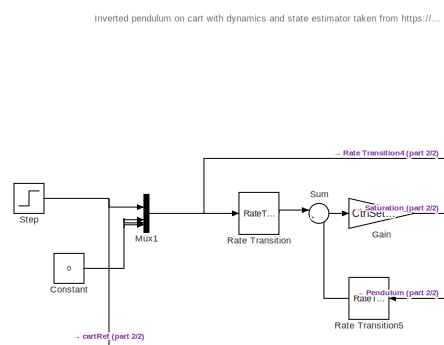
[diagram: root canvas - part 1/2, left side, full height]
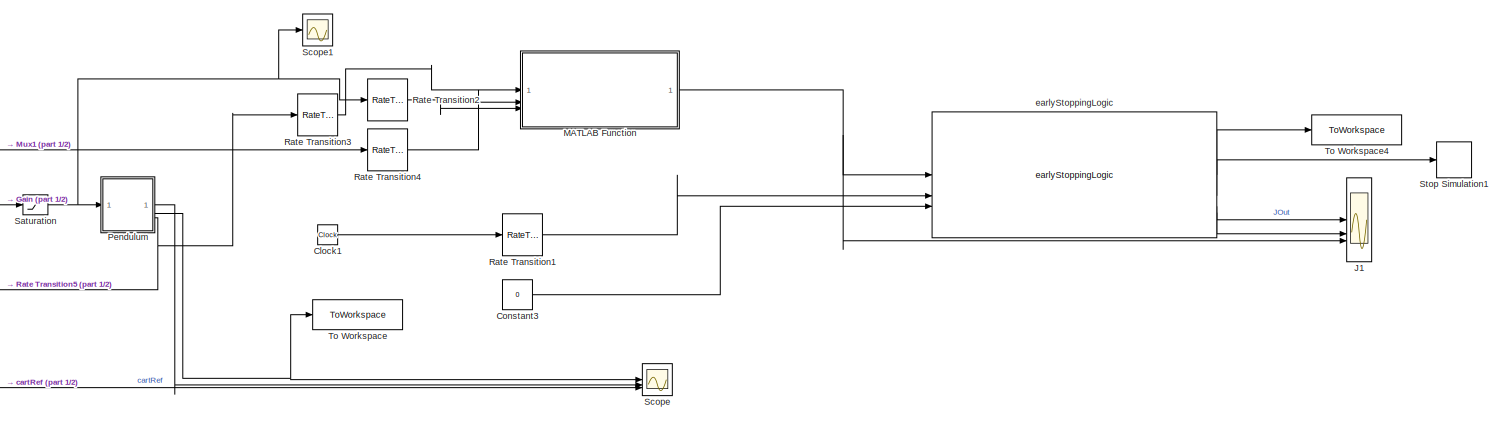
[diagram: root canvas - part 2/2, most of the canvas]
MODEL slx_97bd4b25ec9b
KIND model
CONFIG AbsTol = 1e-6
CONFIG EnableMultiTasking = off
CONFIG FixedStep = auto
CONFIG MaxStep = 0.02
CONFIG MinStep = auto
CONFIG RelTol = 1e-3
CONFIG SampleTimeConstraint = Unconstrained
CONFIG SolverName = ode45
CONFIG StartTime = 0
CONFIG StopTime = ESSettings.tend 
BLOCK [Clock] Clock1
BLOCK [Constant] Constant
  Value = 0
BLOCK [Constant] Constant3
  Value = 0
BLOCK [Gain] Gain
  Gain = CtrlSettings.K
  Multiplication = Matrix(K*u) (u vector)
BLOCK [Scope] J1
  Floating = off
  NumInputPorts = 3
  ScopeSpecificationString = Simulink.scopes.TimeScopeBlockCfg('CurrentConfiguration', extmgr.ConfigurationSet(extmgr.Configuration('Core','General UI',true),extmgr.Configuration('Core','Source UI',true),extmgr.Configuration('Sources','WiredSimulink',true),extmgr.Configuration('Visuals','Time Domain',true,'SerializedDisplays',{struct('MinYLimReal','-0.00002','MaxYLimReal','0.00014','YLabelReal','','MinYLimMag','0.00000','MaxY...<+2235ch>
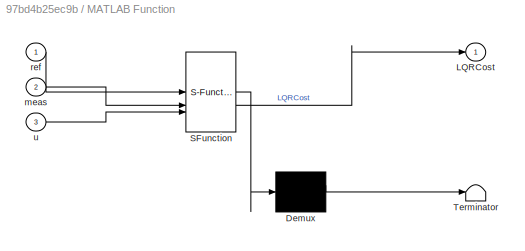
BLOCK [SubSystem] MATLAB Function
  ErrorFcn = Stateflow.Translate.translate
  PermitHierarchicalResolution = ExplicitOnly
  SFBlockType = MATLAB Function
  TreatAsAtomicUnit = on
BLOCK [Demux] MATLAB Function/ Demux 
  Outputs = 1
BLOCK [S-Function] MATLAB Function/ SFunction 
  EnableBusSupport = on
  FunctionName = sf_sfun
  Parameters = CostMat
  PortCounts = [3 2]
  SFcnIsStateOwnerBlock = off
  SFunctionDeploymentMode = off
  Tag = Stateflow S-Function 2
BLOCK [Terminator] MATLAB Function/ Terminator 
BLOCK [Outport] MATLAB Function/LQRCost
BLOCK [Inport] MATLAB Function/meas
  Port = 2
BLOCK [Inport] MATLAB Function/ref
BLOCK [Inport] MATLAB Function/u
  Port = 3
BLOCK [Mux] Mux1
  DisplayOption = bar
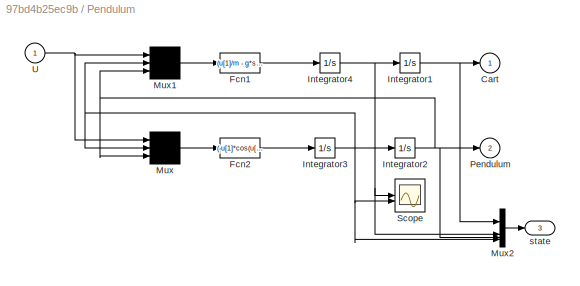
BLOCK [SubSystem] Pendulum
BLOCK [Outport] Pendulum/Cart
  InitialOutput = 0
  VectorParamsAs1DForOutWhenUnconnected = off
BLOCK [Fcn] Pendulum/Fcn1
  Expr = (u[1]/m - g*sin(u[3])*cos(u[3]) + l*power(u[2],2)*sin(u[3]))/(Mcart/m + power(sin(u[3]),2))
BLOCK [Fcn] Pendulum/Fcn2
  Expr = (-u[1]*cos(u[3])/m + (Mcart+m)*g*sin(u[3])/m - l*power(u[2],2)*sin(u[3])*cos(u[3]))/(l*(Mcart/m + power(sin(u[3]),2)))
BLOCK [Integrator] Pendulum/Integrator1
  LowerSaturationLimit = -3
  UpperSaturationLimit = 3
BLOCK [Integrator] Pendulum/Integrator2
  InitialCondition = 30/180*pi
BLOCK [Integrator] Pendulum/Integrator3
BLOCK [Integrator] Pendulum/Integrator4
BLOCK [Mux] Pendulum/Mux
  Inputs = 3
BLOCK [Mux] Pendulum/Mux1
  Inputs = 3
BLOCK [Mux] Pendulum/Mux2
  DisplayOption = bar
BLOCK [Outport] Pendulum/Pendulum
  InitialOutput = 0
  Port = 2
  VectorParamsAs1DForOutWhenUnconnected = off
BLOCK [Scope] Pendulum/Scope
  Floating = off
  NumInputPorts = 2
  ScopeSpecificationString = Simulink.scopes.TimeScopeBlockCfg('CurrentConfiguration', extmgr.ConfigurationSet(extmgr.Configuration('Core','General UI',true),extmgr.Configuration('Core','Source UI',true),extmgr.Configuration('Sources','WiredSimulink',true,'DataLoggingVariableName','ScopeData3'),extmgr.Configuration('Visuals','Time Domain',true,'SerializedDisplays',{struct('MinYLimReal','-0.23414','MaxYLimReal','2.1073','YLabe...<+2056ch>
BLOCK [Inport] Pendulum/U
BLOCK [Outport] Pendulum/state
  Port = 3
BLOCK [RateTransition] Rate Transition
  OutPortSampleTime = 0.02
BLOCK [RateTransition] Rate Transition1
  OutPortSampleTime = ESSettings.t_obj
BLOCK [RateTransition] Rate Transition2
  OutPortSampleTime = ESSettings.t_obj
BLOCK [RateTransition] Rate Transition3
  OutPortSampleTime = ESSettings.t_obj
BLOCK [RateTransition] Rate Transition4
  OutPortSampleTime = ESSettings.t_obj
BLOCK [RateTransition] Rate Transition5
  NameLocation = top
  OutPortSampleTime = 0.02
BLOCK [Saturate] Saturation
  LowerLimit = -10
  UpperLimit = 10
BLOCK [Scope] Scope
  Floating = off
  NumInputPorts = 3
  ScopeSpecificationString = Simulink.scopes.TimeScopeBlockCfg('CurrentConfiguration', extmgr.ConfigurationSet(extmgr.Configuration('Core','General UI',true),extmgr.Configuration('Core','Source UI',true),extmgr.Configuration('Sources','WiredSimulink',true,'DataLoggingVariableName','ScopeData1'),extmgr.Configuration('Visuals','Time Domain',true,'SerializedDisplays',{struct('MinYLimReal','-0.15847','MaxYLimReal','0.59938','YLab...<+2100ch>
BLOCK [Scope] Scope1
  Floating = off
  NumInputPorts = 1
  ScopeSpecificationString = Simulink.scopes.TimeScopeBlockCfg('CurrentConfiguration', extmgr.ConfigurationSet(extmgr.Configuration('Core','General UI',true),extmgr.Configuration('Core','Source UI',true),extmgr.Configuration('Sources','WiredSimulink',true,'DataLoggingVariableName','ScopeData2'),extmgr.Configuration('Visuals','Time Domain',true,'SerializedDisplays',{struct('MinYLimReal','-12.5','MaxYLimReal','12.5','YLabelReal...<+1529ch>
BLOCK [Step] Step
  SampleTime = 0
  Time = 10
BLOCK [Stop] Stop Simulation1
BLOCK [Sum] Sum
  Inputs = |+-
BLOCK [ToWorkspace] To Workspace
  FixptAsFi = on
  MaxDataPoints = inf
  SampleTime = -1
  SaveFormat = Timeseries
  VariableName = poleAngle
BLOCK [ToWorkspace] To Workspace4
  FixptAsFi = on
  MaxDataPoints = inf
  SampleTime = -1
  SaveFormat = Structure With Time
  VariableName = j
BLOCK [Reference] earlyStoppingLogic  REF=UtilLib/earlyStoppingLogic
  SourceBlock = UtilLib/earlyStoppingLogic
  SourceType = SubSystem
ANNOTATION (root): Inverted pendulum on cart with dynamics and state estimator taken from https://de.mathworks.com/help/simulink/slref/inverted-pendulum-with-animation.html
LINE Clock1:1 -> Rate Transition1:1
LINE Constant3:1 -> earlyStoppingLogic:3
NET Constant:1 -> Mux1:2, Mux1:3, Mux1:4
LINE Gain:1 -> Saturation:1
NET MATLAB Function:1 -> J1:3, earlyStoppingLogic:1
NET Mux1:1 -> Rate Transition4:1, Rate Transition:1
LINE Pendulum/Fcn1:1 -> Pendulum/Integrator4:1
LINE Pendulum/Fcn2:1 -> Pendulum/Integrator3:1
NET Pendulum/Integrator1:1 -> Pendulum/Cart:1, Pendulum/Mux2:1
NET Pendulum/Integrator2:1 -> Pendulum/Mux1:3, Pendulum/Mux2:3, Pendulum/Mux:3, Pendulum/Pendulum:1
NET Pendulum/Integrator3:1 -> Pendulum/Integrator2:1, Pendulum/Mux1:2, Pendulum/Mux2:4, Pendulum/Mux:2, Pendulum/Scope:2
NET Pendulum/Integrator4:1 -> Pendulum/Integrator1:1, Pendulum/Mux2:2, Pendulum/Scope:1
LINE Pendulum/Mux1:1 -> Pendulum/Fcn1:1
LINE Pendulum/Mux2:1 -> Pendulum/state:1
LINE Pendulum/Mux:1 -> Pendulum/Fcn2:1
NET Pendulum/U:1 -> Pendulum/Mux1:1, Pendulum/Mux:1
LINE Pendulum:1 -> Scope:2
NET Pendulum:2 -> Scope:1, To Workspace:1
NET Pendulum:3 -> Rate Transition3:1, Rate Transition5:1
LINE Rate Transition1:1 -> earlyStoppingLogic:2
LINE Rate Transition2:1 -> MATLAB Function:3
LINE Rate Transition3:1 -> MATLAB Function:1
LINE Rate Transition4:1 -> MATLAB Function:2
LINE Rate Transition5:1 -> Sum:2
LINE Rate Transition:1 -> Sum:1
NET Saturation:1 -> Pendulum:1, Rate Transition2:1, Scope1:1
NET Step:1 -> Mux1:1, Scope:3
LINE Sum:1 -> Gain:1
LINE earlyStoppingLogic:1 -> To Workspace4:1
LINE earlyStoppingLogic:2 -> Stop Simulation1:1
LINE earlyStoppingLogic:3 -> J1:1
LINE earlyStoppingLogic:4 -> J1:2
note: NET lines group one-source signal fan-out (src -> all destinations, sorted); 1:1 wires keep LINE
CHART MATLAB Function states=1 transitions=1
  STATE_LABEL 'eML_blk_kernel()'
  STATE_LABEL "SCRIPT:\nfunction LQRCost  = fcn(ref, meas,u,CostMat)\nLQRCost = sum(abs(min(abs(ref-meas),2)).^2.*CostMat.R' + u.^2*CostMat.Q);\nend"
CHART  states=0 transitions=0
